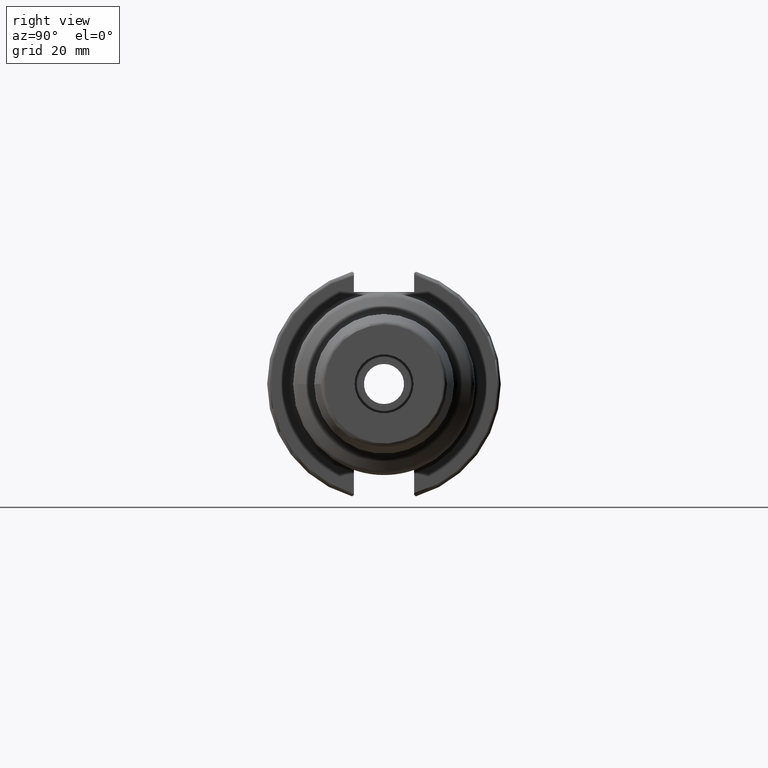
[diagram: clean part render]
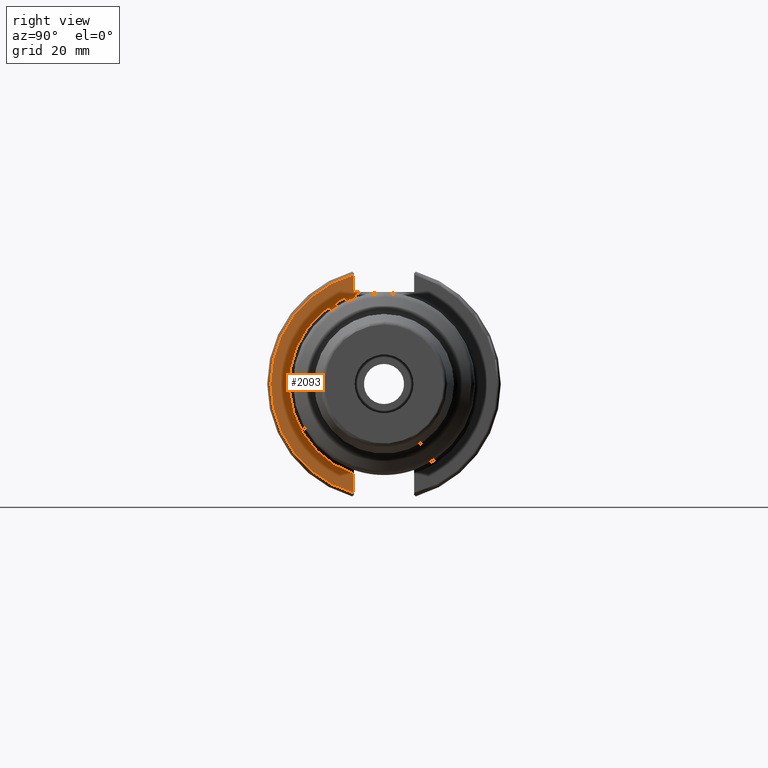
[diagram: same view with one face highlighted and labeled with its STEP entity id]
A machine part, right view. The second image highlights one B-rep face of the part: STEP entity #2093.
In plain terms, the highlighted planar face has unit normal (1, 0, 0).
Its self-contained STEP definition (entity closure, byte-faithful):
#50=PLANE('',#2304);
#194=FACE_OUTER_BOUND('',#303,.T.);
#303=EDGE_LOOP('',(#1540,#1541,#1542,#1543,#1544));
#409=LINE('',#3512,#503);
#410=LINE('',#3514,#504);
#411=LINE('',#3517,#505);
#503=VECTOR('',#2735,10.);
#504=VECTOR('',#2736,10.);
#505=VECTOR('',#2739,10.);
#665=CIRCLE('',#2300,25.75);
#669=CIRCLE('',#2305,30.75);
#839=VERTEX_POINT('',#3469);
#841=VERTEX_POINT('',#3481);
#846=VERTEX_POINT('',#3511);
#847=VERTEX_POINT('',#3513);
#848=VERTEX_POINT('',#3515);
#1106=EDGE_CURVE('',#839,#841,#665,.T.);
#1112=EDGE_CURVE('',#839,#846,#409,.T.);
#1113=EDGE_CURVE('',#846,#847,#410,.T.);
#1114=EDGE_CURVE('',#848,#847,#669,.T.);
#1115=EDGE_CURVE('',#848,#841,#411,.T.);
#1540=ORIENTED_EDGE('',*,*,#1106,.F.);
#1541=ORIENTED_EDGE('',*,*,#1112,.T.);
#1542=ORIENTED_EDGE('',*,*,#1113,.T.);
#1543=ORIENTED_EDGE('',*,*,#1114,.F.);
#1544=ORIENTED_EDGE('',*,*,#1115,.T.);
#2093=ADVANCED_FACE('',(#194),#50,.T.);
#2300=AXIS2_PLACEMENT_3D('',#3482,#2725,#2726);
#2304=AXIS2_PLACEMENT_3D('',#3510,#2733,#2734);
#2305=AXIS2_PLACEMENT_3D('',#3516,#2737,#2738);
#2725=DIRECTION('center_axis',(1.,0.,0.));
#2726=DIRECTION('ref_axis',(0.,6.12323399573677E-17,1.));
#2733=DIRECTION('center_axis',(1.,0.,0.));
#2734=DIRECTION('ref_axis',(0.,0.,-1.));
#2735=DIRECTION('',(0.,-1.,0.));
#2736=DIRECTION('',(0.,0.,1.));
#2737=DIRECTION('center_axis',(-1.,0.,0.));
#2738=DIRECTION('ref_axis',(0.,-1.,1.60812264967664E-16));
#2739=DIRECTION('',(0.,0.,1.));
#3469=CARTESIAN_POINT('',(19.05,-6.16948133962654,25.));
#3481=CARTESIAN_POINT('',(19.05,-8.19,-24.4128326910254));
#3482=CARTESIAN_POINT('Origin',(19.05,0.,0.));
#3510=CARTESIAN_POINT('Origin',(19.05,0.,0.));
#3511=CARTESIAN_POINT('',(19.05,-8.19,25.));
#3512=CARTESIAN_POINT('',(19.05,0.,25.));
#3513=CARTESIAN_POINT('',(19.05,-8.19,29.6392712461019));
#3514=CARTESIAN_POINT('',(19.05,-8.19,12.5));
#3515=CARTESIAN_POINT('',(19.05,-8.19,-29.6392712461019));
#3516=CARTESIAN_POINT('Origin',(19.05,0.,0.));
#3517=CARTESIAN_POINT('',(19.05,-8.19,-11.3));